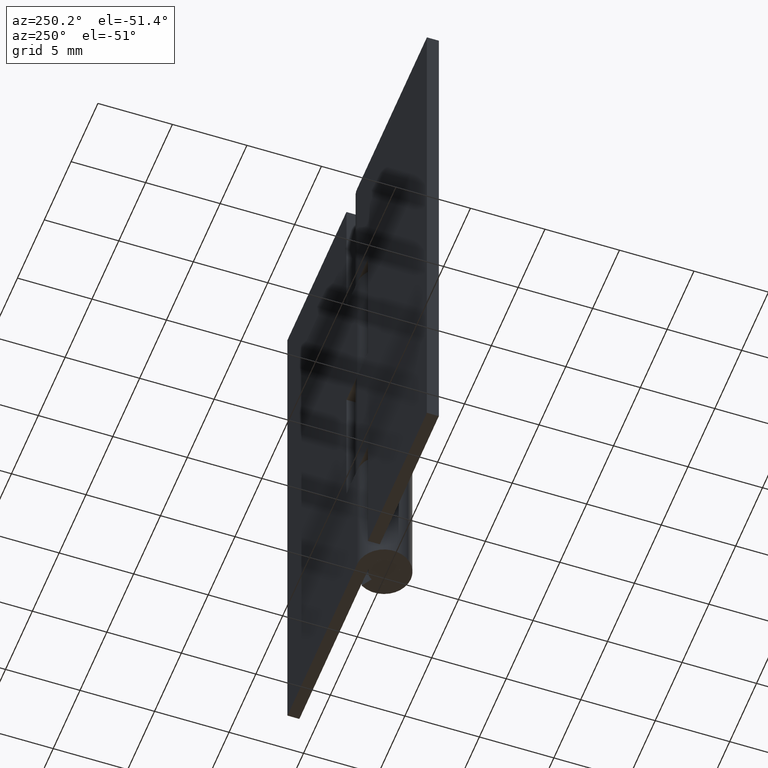
[diagram: clean part render]
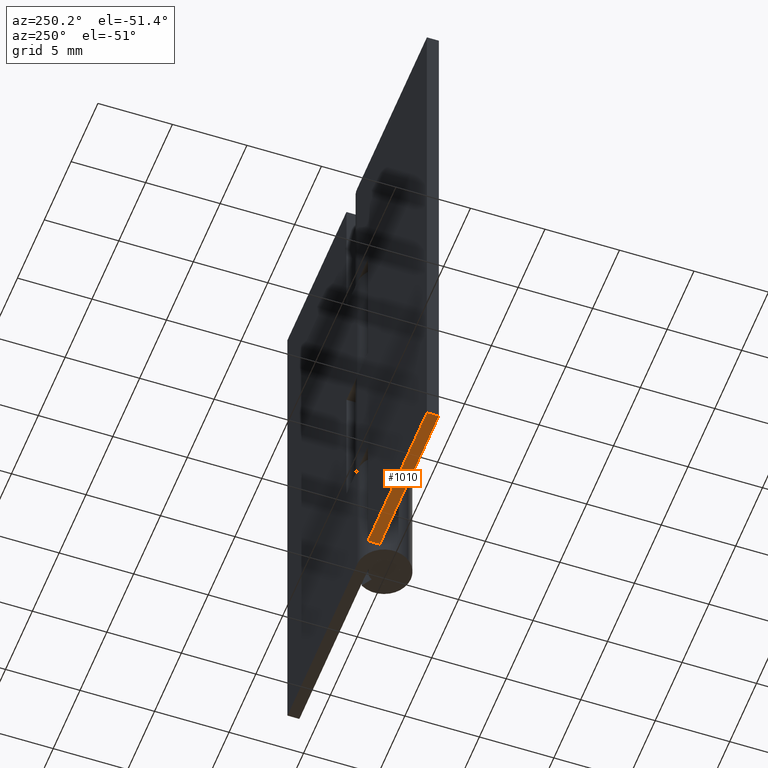
[diagram: same view with one face highlighted and labeled with its STEP entity id]
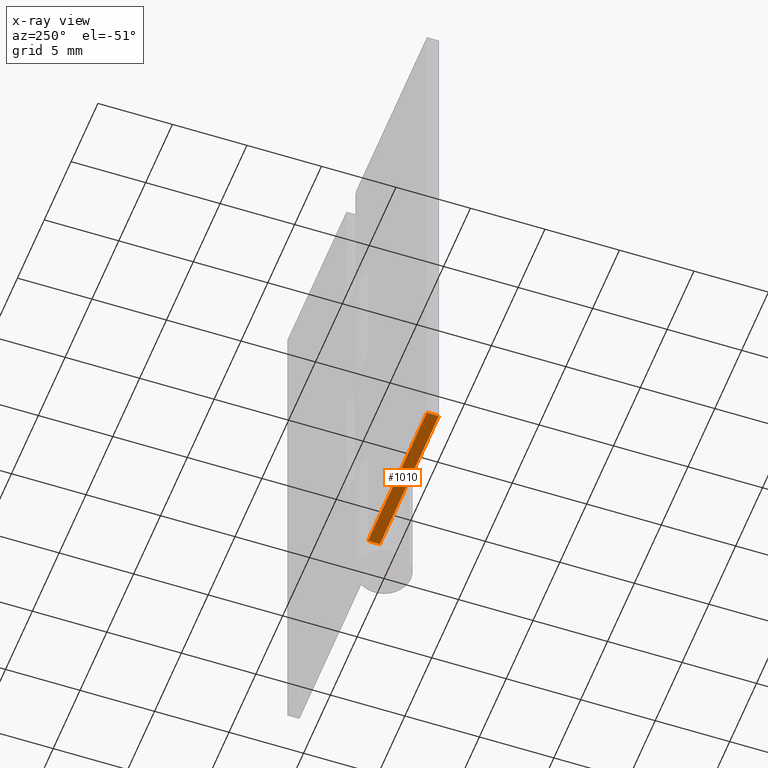
[diagram: x-ray of the same camera — body ghosted, the highlighted face saturated]
A machine part, auxiliary view. The second image highlights one B-rep face of the part: STEP entity #1010.
The next image is the same camera in x-ray: the body ghosted, the highlighted face saturated — about 0% of this face is hidden behind the body in this view.
In plain terms, the highlighted face is a freeform B-spline surface patch.
Its self-contained STEP definition (entity closure, byte-faithful):
#882=CARTESIAN_POINT('',(-2.0,1.0,0.0));
#883=VERTEX_POINT('',#882);
#884=CARTESIAN_POINT('',(-2.0,1.800003000000040,0.0));
#885=VERTEX_POINT('',#884);
#886=CARTESIAN_POINT('',(-2.0,1.0,0.0));
#887=CARTESIAN_POINT('',(-2.0,1.800003000000040,0.0));
#888=QUASI_UNIFORM_CURVE('',1,(#886,#887),.UNSPECIFIED.,.F.,.U.);
#889=EDGE_CURVE('',#883,#885,#888,.T.);
#983=CARTESIAN_POINT('',(-13.549449978679871,1.839963208378327,0.0));
#984=CARTESIAN_POINT('',(-1.450549726277143,1.839963208378327,0.0));
#985=CARTESIAN_POINT('',(-13.549449978679871,0.960039827384634,0.0));
#986=CARTESIAN_POINT('',(-1.450549726277143,0.960039827384634,0.0));
#987=B_SPLINE_SURFACE_WITH_KNOTS('',1,1,((#983,#985),(#984,#986)),.UNSPECIFIED.,.F.,.F.,.U.,(2,2),(2,2),(0.0,12.098900252402720),(0.041708272366598,0.958291690380499),.UNSPECIFIED.);
#988=CARTESIAN_POINT('',(-13.0,1.800003000000000,0.0));
#989=VERTEX_POINT('',#988);
#990=CARTESIAN_POINT('',(-2.0,1.800003000000040,0.0));
#991=CARTESIAN_POINT('',(-13.0,1.800003000000000,0.0));
#992=QUASI_UNIFORM_CURVE('',1,(#990,#991),.UNSPECIFIED.,.F.,.U.);
#993=EDGE_CURVE('',#885,#989,#992,.T.);
#994=ORIENTED_EDGE('',*,*,#993,.F.);
#995=ORIENTED_EDGE('',*,*,#889,.F.);
#996=CARTESIAN_POINT('',(-13.0,1.0,0.0));
#997=VERTEX_POINT('',#996);
#998=CARTESIAN_POINT('',(-13.0,1.0,0.0));
#999=CARTESIAN_POINT('',(-2.0,1.0,0.0));
#1000=QUASI_UNIFORM_CURVE('',1,(#998,#999),.UNSPECIFIED.,.F.,.U.);
#1001=EDGE_CURVE('',#997,#883,#1000,.T.);
#1002=ORIENTED_EDGE('',*,*,#1001,.F.);
#1003=CARTESIAN_POINT('',(-13.0,1.800003000000000,0.0));
#1004=CARTESIAN_POINT('',(-13.0,1.0,0.0));
#1005=QUASI_UNIFORM_CURVE('',1,(#1003,#1004),.UNSPECIFIED.,.F.,.U.);
#1006=EDGE_CURVE('',#989,#997,#1005,.T.);
#1007=ORIENTED_EDGE('',*,*,#1006,.F.);
#1008=EDGE_LOOP('',(#994,#995,#1002,#1007));
#1009=FACE_OUTER_BOUND('',#1008,.T.);
#1010=ADVANCED_FACE('',(#1009),#987,.T.);